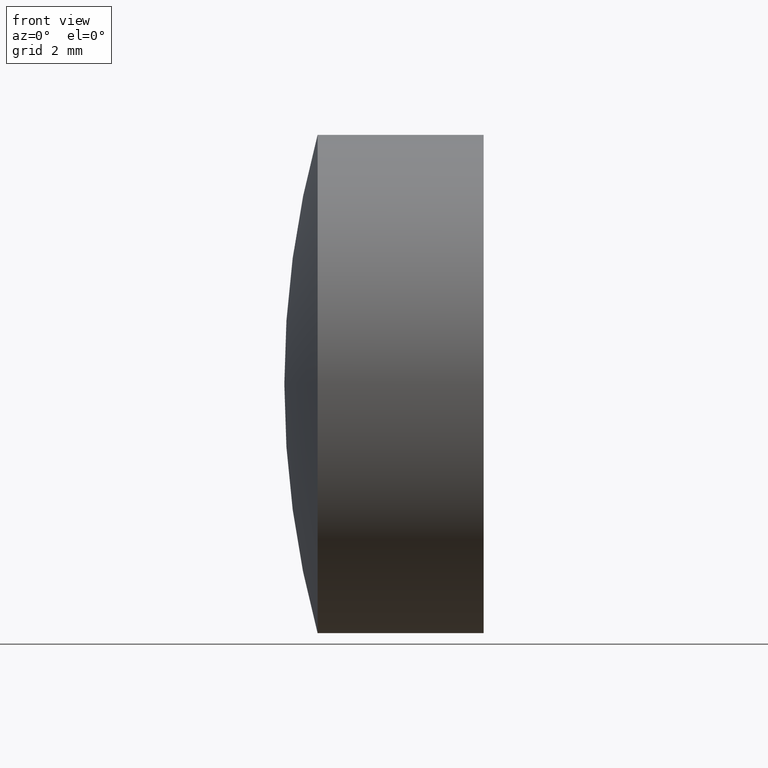
[diagram: clean part render]
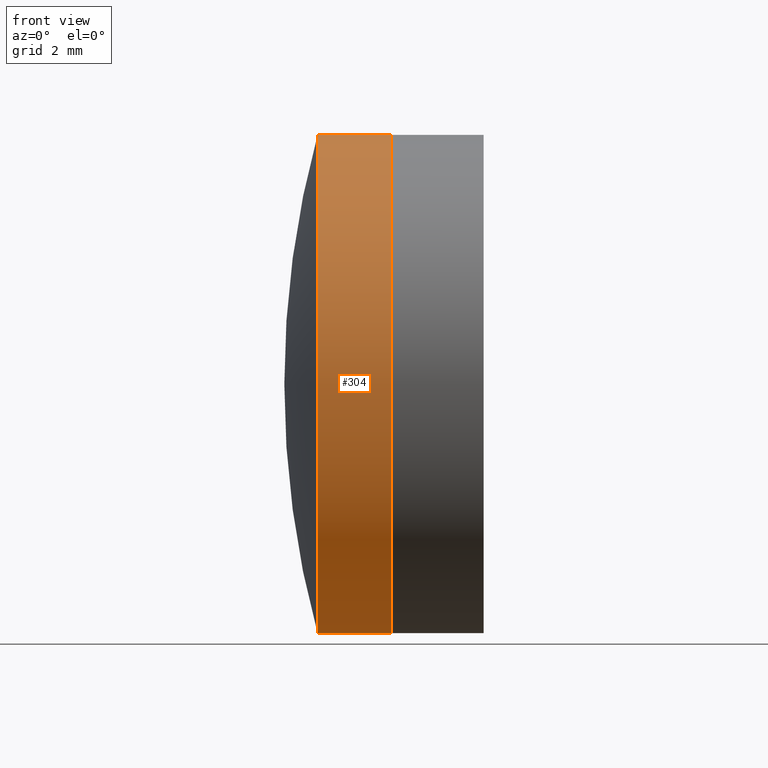
[diagram: same view with one face highlighted and labeled with its STEP entity id]
A machine part, front view. The second image highlights one B-rep face of the part: STEP entity #304.
In plain terms, the highlighted cylindrical surface (partial cylindrical patch) has radius 6.35 mm, axis along (-1, -0, -0).
Its self-contained STEP definition (entity closure, byte-faithful):
#11 = AXIS2_PLACEMENT_3D ( 'NONE', #208, #22, #184 ) ;
#16 = FACE_OUTER_BOUND ( 'NONE', #156, .T. ) ;
#18 = ORIENTED_EDGE ( 'NONE', *, *, #73, .F. ) ;
#22 = DIRECTION ( 'NONE',  ( -1.000000000000000000, -0.0000000000000000000, -0.0000000000000000000 ) ) ;
#30 = LINE ( 'NONE', #167, #227 ) ;
#34 = DIRECTION ( 'NONE',  ( -1.000000000000000000, -0.0000000000000000000, -0.0000000000000000000 ) ) ;
#60 = DIRECTION ( 'NONE',  ( -1.000000000000000000, -0.0000000000000000000, -0.0000000000000000000 ) ) ;
#73 = EDGE_CURVE ( 'NONE', #122, #99, #131, .T. ) ;
#85 = DIRECTION ( 'NONE',  ( -1.000000000000000000, -0.0000000000000000000, -0.0000000000000000000 ) ) ;
#87 = CIRCLE ( 'NONE', #154, 6.349999999999996100 ) ;
#99 = VERTEX_POINT ( 'NONE', #105 ) ;
#105 = CARTESIAN_POINT ( 'NONE',  ( 284.8569224778333400, 0.0000000000000000000, 6.350000000000001400 ) ) ;
#111 = DIRECTION ( 'NONE',  ( 0.0000000000000000000, 0.0000000000000000000, 1.000000000000000000 ) ) ;
#122 = VERTEX_POINT ( 'NONE', #271 ) ;
#131 = CIRCLE ( 'NONE', #11, 6.349999999999996100 ) ;
#136 = AXIS2_PLACEMENT_3D ( 'NONE', #343, #34, #111 ) ;
#140 = CARTESIAN_POINT ( 'NONE',  ( 286.7458055381524700, 7.776507174585689200E-016, -6.349999999999996100 ) ) ;
#146 = CARTESIAN_POINT ( 'NONE',  ( 286.7458055381524700, 0.0000000000000000000, 6.349999999999996100 ) ) ;
#154 = AXIS2_PLACEMENT_3D ( 'NONE', #238, #60, #212 ) ;
#155 = CYLINDRICAL_SURFACE ( 'NONE', #136, 6.349999999999996100 ) ;
#156 = EDGE_LOOP ( 'NONE', ( #245, #323, #175, #18 ) ) ;
#167 = CARTESIAN_POINT ( 'NONE',  ( 124.5233095260452400, 0.0000000000000000000, 6.349999999999996100 ) ) ;
#175 = ORIENTED_EDGE ( 'NONE', *, *, #292, .T. ) ;
#184 = DIRECTION ( 'NONE',  ( 0.0000000000000000000, 0.0000000000000000000, 1.000000000000000000 ) ) ;
#208 = CARTESIAN_POINT ( 'NONE',  ( 284.8569224778333400, 0.0000000000000000000, 0.0000000000000000000 ) ) ;
#212 = DIRECTION ( 'NONE',  ( 0.0000000000000000000, 0.0000000000000000000, 1.000000000000000000 ) ) ;
#213 = VERTEX_POINT ( 'NONE', #146 ) ;
#215 = VECTOR ( 'NONE', #85, 1000.000000000000000 ) ;
#227 = VECTOR ( 'NONE', #311, 1000.000000000000000 ) ;
#238 = CARTESIAN_POINT ( 'NONE',  ( 286.7458055381524700, 0.0000000000000000000, 0.0000000000000000000 ) ) ;
#245 = ORIENTED_EDGE ( 'NONE', *, *, #332, .F. ) ;
#259 = CARTESIAN_POINT ( 'NONE',  ( 124.5233095260452400, 7.776507174585689200E-016, -6.349999999999996100 ) ) ;
#271 = CARTESIAN_POINT ( 'NONE',  ( 284.8569224778333400, 7.776507174585695100E-016, -6.350000000000005000 ) ) ;
#288 = LINE ( 'NONE', #259, #215 ) ;
#292 = EDGE_CURVE ( 'NONE', #213, #99, #30, .T. ) ;
#303 = VERTEX_POINT ( 'NONE', #140 ) ;
#304 = ADVANCED_FACE ( 'NONE', ( #16 ), #155, .T. ) ;
#311 = DIRECTION ( 'NONE',  ( -1.000000000000000000, -0.0000000000000000000, -0.0000000000000000000 ) ) ;
#323 = ORIENTED_EDGE ( 'NONE', *, *, #328, .T. ) ;
#328 = EDGE_CURVE ( 'NONE', #303, #213, #87, .T. ) ;
#332 = EDGE_CURVE ( 'NONE', #303, #122, #288, .T. ) ;
#343 = CARTESIAN_POINT ( 'NONE',  ( 124.5233095260452400, 0.0000000000000000000, 0.0000000000000000000 ) ) ;